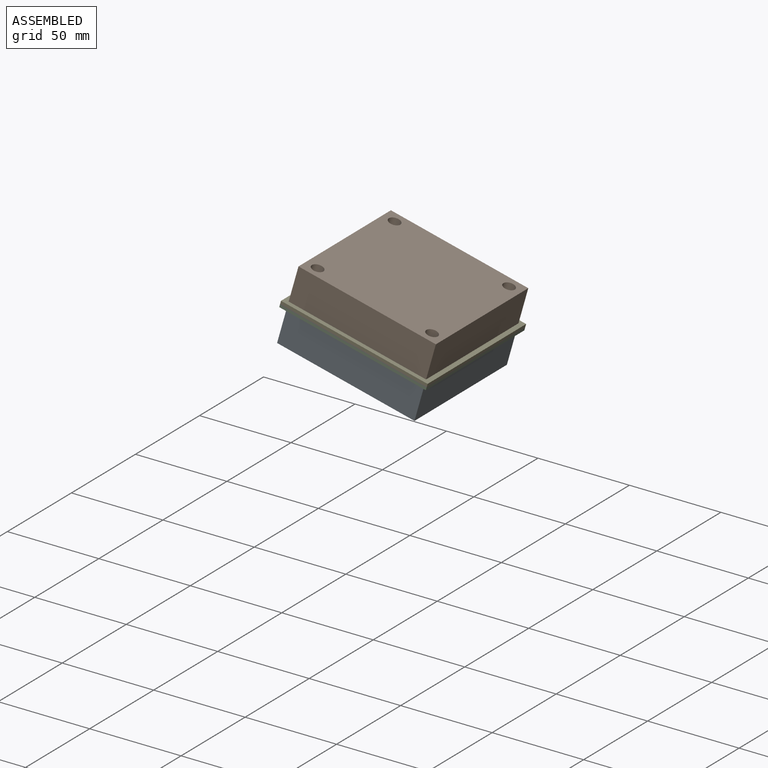
[diagram: assembled view]
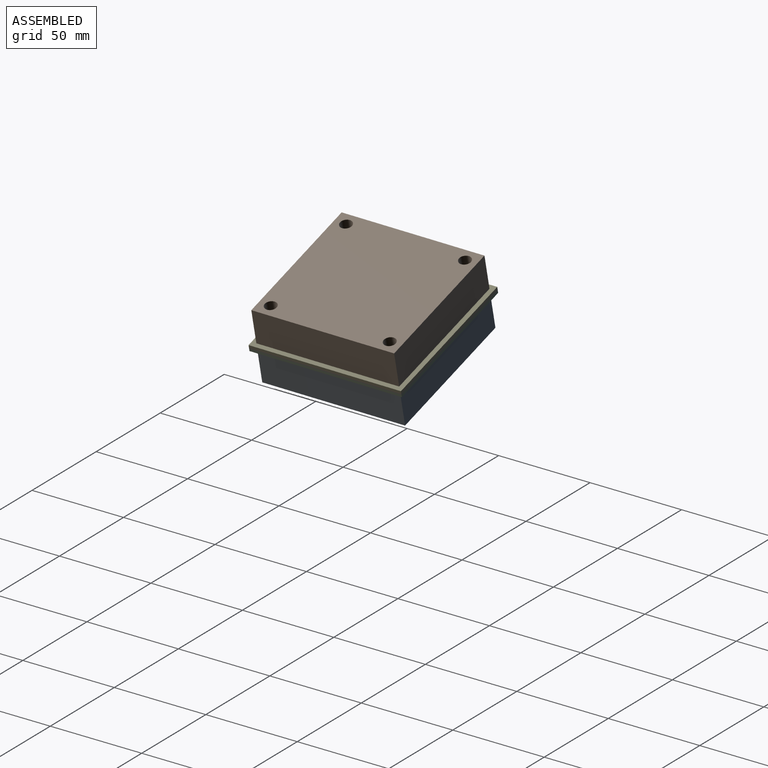
[diagram: assembled view, second angle]
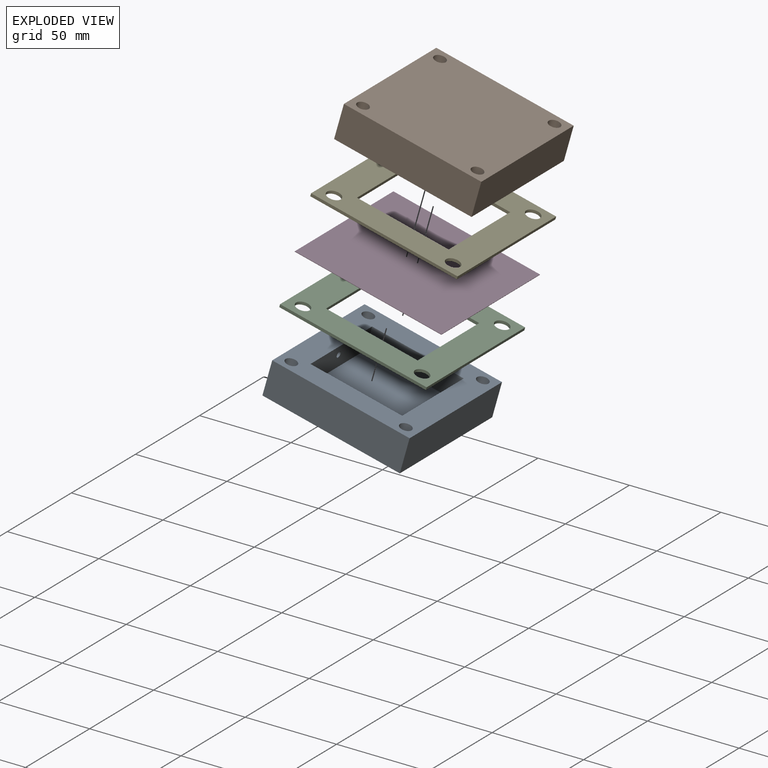
[diagram: exploded view]
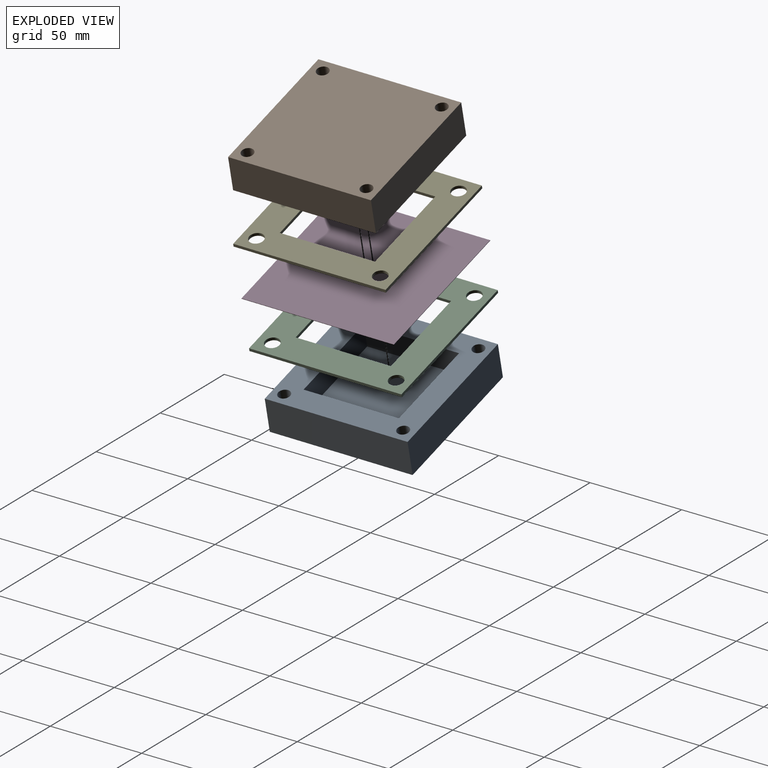
[diagram: exploded view, second angle]
ASSEMBLY  parts=5 mates=4
PART A: 16 faces, bbox 76.2x76.2x19.1 mm
  f0: plane 76.2x19.05mm, normal (-1,0,0), area 1451.6mm2, adj f1,f3,f4,f9
  f1: plane 76.2x19.05mm, normal (0,-1,0), area 1451.6mm2, adj f0,f2,f4,f9
  f2: plane 76.2x19.05mm, normal (1,0,0), area 1451.6mm2, adj f1,f3,f4,f9
  f3: plane 76.2x19.05mm, normal (0,1,0), area 1443.7mm2, adj f0,f2,f4,f9,f11
  f4: plane 76.2x76.2mm, normal (0,0,-1), area 5679.8mm2, adj f0,f1,f2,f3,f12,f13,f14,f15
  f5: plane 50.8x12.7mm, normal (0,1,0), area 645.2mm2, adj f6,f8,f9,f10
  f6: plane 50.8x12.7mm, normal (1,0,0), area 645.2mm2, adj f5,f7,f9,f10
  f7: plane 50.8x12.7mm, normal (0,-1,0), area 637.2mm2, adj f6,f8,f9,f10,f11
  f8: plane 50.8x12.7mm, normal (-1,0,0), area 645.2mm2, adj f5,f7,f9,f10
  f9: plane 76.2x76.2mm, normal (0,0,1), area 3099.1mm2, adj f0,f1,f2,f3,f5,f6,f7,f8
  f10: plane 50.8x50.8mm, normal (0,0,1), area 2580.6mm2, adj f5,f6,f7,f8
  f11: cylinder r=1.59mm len=12.7mm, axis (0,1,0), area 126.7mm2, adj f3,f7
  f12: cylinder r=3.17mm len=19.05mm, axis (0,0,1), area 380mm2, adj f4,f9
  f13: cylinder r=3.17mm len=19.05mm, axis (0,0,1), area 380mm2, adj f4,f9
  f14: cylinder r=3.17mm len=19.05mm, axis (0,0,1), area 380mm2, adj f4,f9
  f15: cylinder r=3.17mm len=19.05mm, axis (0,0,1), area 380mm2, adj f4,f9
PART B: same geometry as A
PART C: 14 faces, bbox 81.3x81.3x1.6 mm
  f0: plane 50.8x1.59mm, normal (0,1,0), area 80.6mm2, adj f1,f8,f12,f13
  f1: plane 50.8x1.59mm, normal (1,0,0), area 80.6mm2, adj f0,f2,f12,f13
  f2: plane 50.8x1.59mm, normal (0,-1,0), area 80.6mm2, adj f1,f8,f12,f13
  f3: plane 81.28x1.59mm, normal (0,-1,0), area 129mm2, adj f4,f10,f12,f13
  f4: plane 81.28x1.59mm, normal (1,0,0), area 129mm2, adj f3,f5,f12,f13
  f5: plane 81.28x1.59mm, normal (0,1,0), area 129mm2, adj f4,f10,f12,f13
  f6: cylinder r=3.81mm len=7.62mm, axis (0,0,-1), area 38mm2, adj f12,f13
  f7: cylinder r=3.81mm len=7.62mm, axis (0,0,-1), area 38mm2, adj f12,f13
  f8: plane 50.8x1.59mm, normal (-1,0,0), area 80.6mm2, adj f0,f2,f12,f13
  f9: cylinder r=3.81mm len=7.62mm, axis (0,0,-1), area 38mm2, adj f12,f13
  f10: plane 81.28x1.59mm, normal (-1,0,0), area 129mm2, adj f3,f5,f12,f13
  f11: cylinder r=3.81mm len=7.62mm, axis (0,0,-1), area 38mm2, adj f12,f13
  f12: plane 81.28x81.28mm, normal (0,0,1), area 3843.4mm2, adj f0,f1,f2,f3,f4,f5,f6,f7
  f13: plane 81.28x81.28mm, normal (0,0,-1), area 3843.4mm2, adj f0,f1,f2,f3,f4,f5,f6,f7
PART D: 6 faces, bbox 81.3x81.3x0.3 mm
  f0: plane 81.28x0.25mm, normal (-1,0,0), area 20.6mm2, adj f1,f3,f4,f5
  f1: plane 81.28x0.25mm, normal (0,-1,0), area 20.6mm2, adj f0,f2,f4,f5
  f2: plane 81.28x0.25mm, normal (1,0,0), area 20.6mm2, adj f1,f3,f4,f5
  f3: plane 81.28x0.25mm, normal (0,1,0), area 20.6mm2, adj f0,f2,f4,f5
  f4: plane 81.28x81.28mm, normal (0,0,1), area 6606.4mm2, adj f0,f1,f2,f3
  f5: plane 81.28x81.28mm, normal (0,0,-1), area 6606.4mm2, adj f0,f1,f2,f3
PART E: same geometry as C
PLACE A rot(axis=(0.11,0.14,0.98),92.8deg) t=(-7.68,54.23,-31.53)mm
PLACE B rot(axis=(0.72,-0.69,-0.08),168.2deg) t=(2.98,55.71,8.58)mm
PLACE C rot(axis=(-0.12,0.98,0.12),15.1deg) t=(2.73,70.69,-15.18)mm
PLACE D rot(axis=(-0.12,0.98,0.12),15.1deg) t=(-2.38,54.96,-11.59)mm
PLACE E rot(axis=(-0.12,0.98,0.12),15.1deg) t=(3.21,70.75,-13.4)mm
MATE fastened C.f13 <-> A.f9  axis (-0.26,-0.04,-0.97) through (-26.39,28.82,-5.89)mm
MATE fastened E.f12 <-> B.f9  axis (0.26,0.04,0.97) through (23.55,30.38,-15.67)mm
MATE fastened E.f13 <-> D.f4  axis (-0.26,-0.04,-0.97) through (38.42,15.53,-20.72)mm
MATE fastened D.f5 <-> C.f12  axis (-0.26,-0.04,-0.97) through (-2.38,54.96,-11.59)mm
